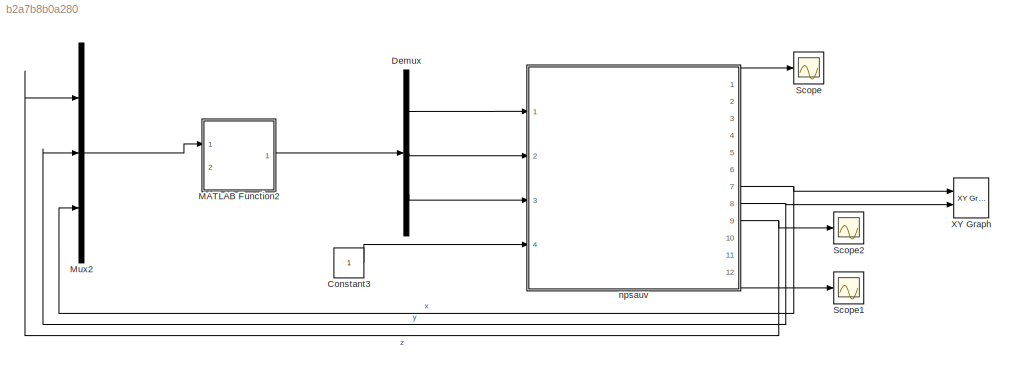
MODEL slx_b2a7b8b0a280
KIND model
CONFIG AbsTol = auto
CONFIG EnableMultiTasking = off
CONFIG FixedStep = 1
CONFIG MaxStep = auto
CONFIG MinStep = auto
CONFIG RelTol = 1e-3
CONFIG SampleTimeConstraint = Unconstrained
CONFIG Solver = FixedStepAuto
CONFIG SolverName = FixedStepAuto
CONFIG StartTime = 0.0
CONFIG StopTime = 1000
BLOCK [Constant] Constant3
BLOCK [Demux] Demux
  DisplayOption = bar
  Outputs = 3
  Ports = [1, 3]
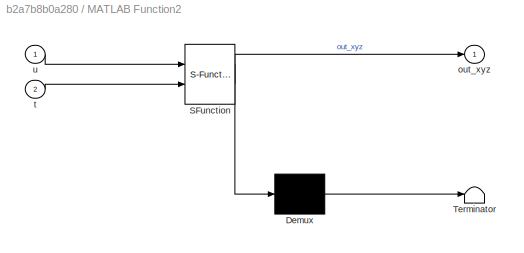
BLOCK [SubSystem] MATLAB Function2
  ErrorFcn = Stateflow.Translate.translate
  PermitHierarchicalResolution = ExplicitOnly
  Ports = [2, 1]
  RequestExecContextInheritance = off
  SFBlockType = MATLAB Function
  TreatAsAtomicUnit = on
  Variant = off
BLOCK [Demux] MATLAB Function2/ Demux 
  Outputs = 1
  Ports = [1, 1]
BLOCK [S-Function] MATLAB Function2/ SFunction 
  EnableBusSupport = on
  FunctionName = sf_sfun
  PortCounts = [2 2]
  Ports = [2, 2]
  SFcnIsStateOwnerBlock = off
  SFunctionDeploymentMode = off
  Tag = Stateflow S-Function npsauv_with_psi_converter 3
BLOCK [Terminator] MATLAB Function2/ Terminator 
BLOCK [Outport] MATLAB Function2/out_xyz
  IconDisplay = Port number
BLOCK [Inport] MATLAB Function2/t
  IconDisplay = Port number
  Port = 2
BLOCK [Inport] MATLAB Function2/u
  IconDisplay = Port number
BLOCK [Mux] Mux2
  DisplayOption = bar
  Inputs = 3
  Ports = [3, 1]
BLOCK [Scope] Scope
  NumInputPorts = 1
  Ports = [1]
  ScopeSpecificationString = Simulink.scopes.TimeScopeBlockCfg('CurrentConfiguration', extmgr.ConfigurationSet(extmgr.Configuration('Core','General UI',true),extmgr.Configuration('Core','Source UI',true),extmgr.Configuration('Sources','WiredSimulink',true,'DataLoggingVariableName','ScopeData2'),extmgr.Configuration('Visuals','Time Domain',true,'SerializedDisplays',{struct('MinYLimReal','-0.13586','MaxYLimReal','1.22272','YLab...<+1417ch>
BLOCK [Scope] Scope1
  NumInputPorts = 1
  Ports = [1]
  ScopeSpecificationString = Simulink.scopes.TimeScopeBlockCfg('CurrentConfiguration', extmgr.ConfigurationSet(extmgr.Configuration('Core','General UI',true),extmgr.Configuration('Core','Source UI',true),extmgr.Configuration('Sources','WiredSimulink',true,'DataLoggingVariableName','ScopeData3'),extmgr.Configuration('Visuals','Time Domain',true,'SerializedDisplays',{struct('MinYLimReal','-1.00000','MaxYLimReal','1.00000','YLab...<+1419ch>
BLOCK [Scope] Scope2
  NumInputPorts = 1
  Ports = [1]
  ScopeSpecificationString = Simulink.scopes.TimeScopeBlockCfg('CurrentConfiguration', extmgr.ConfigurationSet(extmgr.Configuration('Core','General UI',true),extmgr.Configuration('Core','Source UI',true),extmgr.Configuration('Sources','WiredSimulink',true),extmgr.Configuration('Visuals','Time Domain',true,'SerializedDisplays',{struct('MinYLimReal','-1.00000','MaxYLimReal','1.00000','YLabelReal','','MinYLimMag','0.00000','MaxY...<+1371ch>
BLOCK [Reference] XY Graph  REF=simulink/Sinks/XY Graph
  Ports = [2]
  SourceBlock = simulink/Sinks/XY Graph
  SourceProductBaseCode = SL
  SourceProductName = Simulink
  SourceType = XY scope.
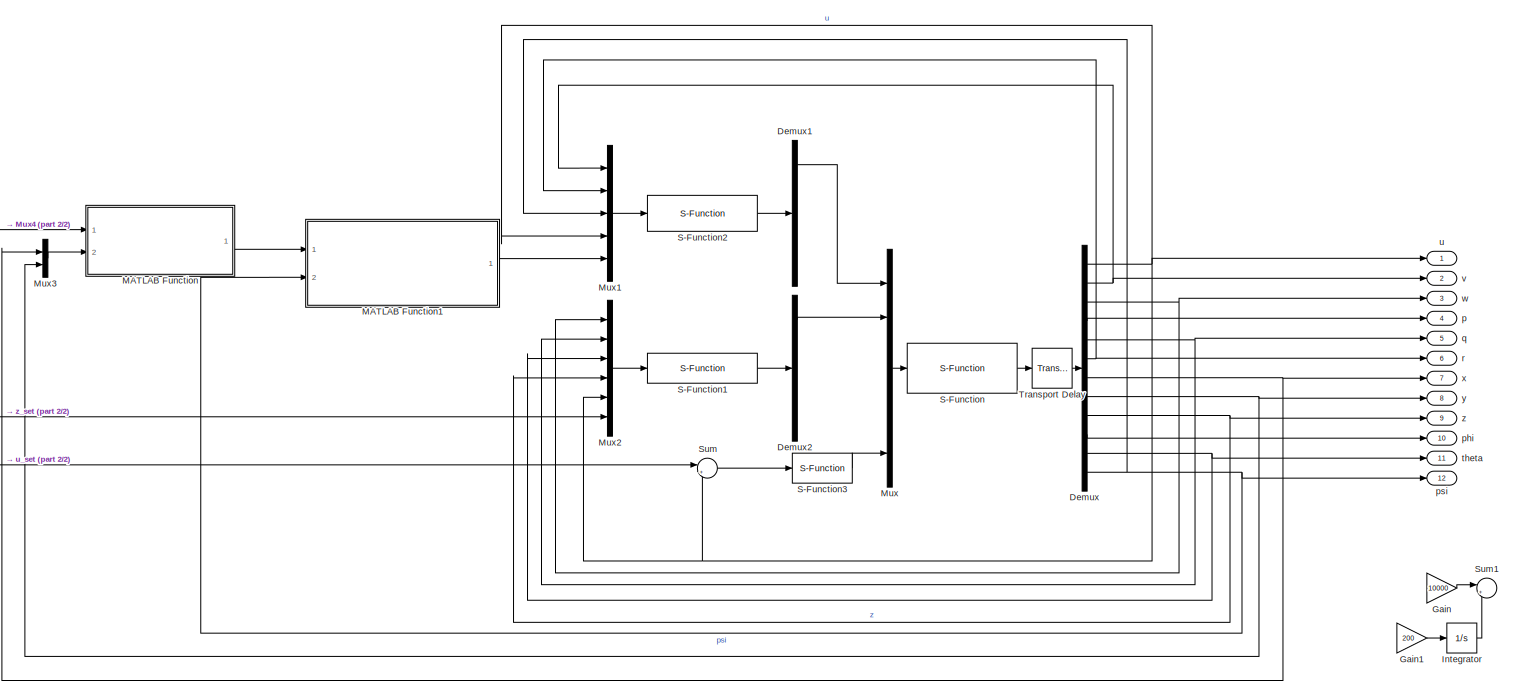
[diagram: npsauv - part 1/2, most of the canvas]
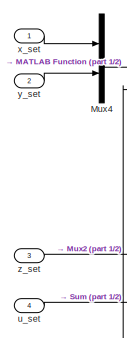
[diagram: npsauv - part 2/2, middle left region]
BLOCK [SubSystem] npsauv
  Ports = [4, 12]
  RequestExecContextInheritance = off
  Variant = off
BLOCK [Demux] npsauv/Demux
  DisplayOption = bar
  Outputs = 12
  Ports = [1, 12]
BLOCK [Demux] npsauv/Demux1
  DisplayOption = bar
  Outputs = 5
  Ports = [1, 5]
BLOCK [Demux] npsauv/Demux2
  DisplayOption = bar
  Outputs = 5
  Ports = [1, 5]
BLOCK [Gain] npsauv/Gain
  Gain = 10000
  OutDataTypeStr = Inherit: Inherit via internal rule
  ParamDataTypeStr = Inherit: Inherit via internal rule
  SaturateOnIntegerOverflow = off
BLOCK [Gain] npsauv/Gain1
  Gain = 200
  OutDataTypeStr = Inherit: Inherit via internal rule
  ParamDataTypeStr = Inherit: Inherit via internal rule
  SaturateOnIntegerOverflow = off
BLOCK [Integrator] npsauv/Integrator
  LimitOutput = on
  LowerSaturationLimit = -50
  Ports = [1, 1]
  UpperSaturationLimit = 50
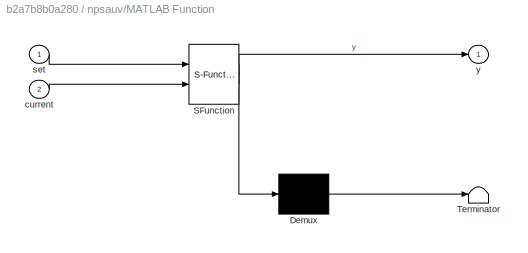
BLOCK [SubSystem] npsauv/MATLAB Function
  ErrorFcn = Stateflow.Translate.translate
  PermitHierarchicalResolution = ExplicitOnly
  Ports = [2, 1]
  RequestExecContextInheritance = off
  SFBlockType = MATLAB Function
  TreatAsAtomicUnit = on
  Variant = off
BLOCK [Demux] npsauv/MATLAB Function/ Demux 
  Outputs = 1
  Ports = [1, 1]
BLOCK [S-Function] npsauv/MATLAB Function/ SFunction 
  EnableBusSupport = on
  FunctionName = sf_sfun
  PortCounts = [2 2]
  Ports = [2, 2]
  SFcnIsStateOwnerBlock = off
  SFunctionDeploymentMode = off
  Tag = Stateflow S-Function npsauv_with_psi_converter 2
BLOCK [Terminator] npsauv/MATLAB Function/ Terminator 
BLOCK [Inport] npsauv/MATLAB Function/current
  IconDisplay = Port number
  Port = 2
BLOCK [Inport] npsauv/MATLAB Function/set
  IconDisplay = Port number
BLOCK [Outport] npsauv/MATLAB Function/y
  IconDisplay = Port number
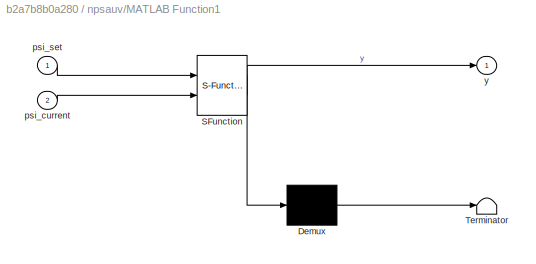
BLOCK [SubSystem] npsauv/MATLAB Function1
  ErrorFcn = Stateflow.Translate.translate
  PermitHierarchicalResolution = ExplicitOnly
  Ports = [2, 1]
  RequestExecContextInheritance = off
  SFBlockType = MATLAB Function
  TreatAsAtomicUnit = on
  Variant = off
BLOCK [Demux] npsauv/MATLAB Function1/ Demux 
  Outputs = 1
  Ports = [1, 1]
BLOCK [S-Function] npsauv/MATLAB Function1/ SFunction 
  EnableBusSupport = on
  FunctionName = sf_sfun
  PortCounts = [2 2]
  Ports = [2, 2]
  SFcnIsStateOwnerBlock = off
  SFunctionDeploymentMode = off
  Tag = Stateflow S-Function npsauv_with_psi_converter 1
BLOCK [Terminator] npsauv/MATLAB Function1/ Terminator 
BLOCK [Inport] npsauv/MATLAB Function1/psi_current
  IconDisplay = Port number
  Port = 2
BLOCK [Inport] npsauv/MATLAB Function1/psi_set
  IconDisplay = Port number
BLOCK [Outport] npsauv/MATLAB Function1/y
  IconDisplay = Port number
BLOCK [Mux] npsauv/Mux
  DisplayOption = bar
  Inputs = 6
  Ports = [6, 1]
BLOCK [Mux] npsauv/Mux1
  DisplayOption = bar
  Inputs = 5
  Ports = [5, 1]
BLOCK [Mux] npsauv/Mux2
  DisplayOption = bar
  Inputs = 6
  Ports = [6, 1]
BLOCK [Mux] npsauv/Mux3
  DisplayOption = bar
  Inputs = 2
  Ports = [2, 1]
BLOCK [Mux] npsauv/Mux4
  DisplayOption = bar
  Inputs = 2
  Ports = [2, 1]
BLOCK [S-Function] npsauv/S-Function
  EnableBusSupport = off
  FunctionName = s_npsauv_model
  Parameters = x_init
  Ports = [1, 1]
  SFcnIsStateOwnerBlock = off
  SFunctionDeploymentMode = off
BLOCK [S-Function] npsauv/S-Function1
  EnableBusSupport = off
  FunctionName = s_mpc_controller_depth
  Ports = [1, 1]
  SFcnIsStateOwnerBlock = off
  SFunctionDeploymentMode = off
BLOCK [S-Function] npsauv/S-Function2
  EnableBusSupport = off
  FunctionName = s_mpc_controller_psi
  Ports = [1, 1]
  SFcnIsStateOwnerBlock = off
  SFunctionDeploymentMode = off
BLOCK [S-Function] npsauv/S-Function3
  EnableBusSupport = off
  FunctionName = s_pid_controller_u
  Ports = [1, 1]
  SFcnIsStateOwnerBlock = off
  SFunctionDeploymentMode = off
BLOCK [Sum] npsauv/Sum
  IconShape = round
  InputSameDT = off
  Inputs = |+-
  OutDataTypeStr = Inherit: Inherit via internal rule
  Ports = [2, 1]
  SaturateOnIntegerOverflow = off
BLOCK [Sum] npsauv/Sum1
  IconShape = round
  InputSameDT = off
  Inputs = |++
  OutDataTypeStr = Inherit: Inherit via internal rule
  Ports = [2, 1]
  SaturateOnIntegerOverflow = off
BLOCK [TransportDelay] npsauv/Transport Delay
  DelayTime = 0.01
  Ports = [1, 1]
BLOCK [Outport] npsauv/p
  IconDisplay = Port number
  Port = 4
BLOCK [Outport] npsauv/phi
  IconDisplay = Port number
  Port = 10
BLOCK [Outport] npsauv/psi
  IconDisplay = Port number
  Port = 12
BLOCK [Outport] npsauv/q
  IconDisplay = Port number
  Port = 5
BLOCK [Outport] npsauv/r
  IconDisplay = Port number
  Port = 6
BLOCK [Outport] npsauv/theta
  IconDisplay = Port number
  Port = 11
BLOCK [Outport] npsauv/u
  IconDisplay = Port number
BLOCK [Inport] npsauv/u_set
  IconDisplay = Port number
  Port = 4
BLOCK [Outport] npsauv/v
  IconDisplay = Port number
  Port = 2
BLOCK [Outport] npsauv/w
  IconDisplay = Port number
  Port = 3
BLOCK [Outport] npsauv/x
  IconDisplay = Port number
  Port = 7
BLOCK [Inport] npsauv/x_set
  IconDisplay = Port number
BLOCK [Outport] npsauv/y
  IconDisplay = Port number
  Port = 8
BLOCK [Inport] npsauv/y_set
  IconDisplay = Port number
  Port = 2
BLOCK [Outport] npsauv/z
  IconDisplay = Port number
  Port = 9
BLOCK [Inport] npsauv/z_set
  IconDisplay = Port number
  Port = 3
LINE Constant3:1 -> npsauv:4
LINE Demux:1 -> npsauv:1
LINE Demux:2 -> npsauv:2
LINE Demux:3 -> npsauv:3
LINE MATLAB Function2:1 -> Demux:1
LINE Mux2:1 -> MATLAB Function2:1
LINE npsauv/Demux1:1 -> npsauv/Mux:1
LINE npsauv/Demux2:1 -> npsauv/Mux:2
NET npsauv/Demux:1 -> npsauv/Mux1:4, npsauv/Mux2:5, npsauv/Sum:2, npsauv/u:1
LINE npsauv/Demux:10 -> npsauv/phi:1
NET npsauv/Demux:11 -> npsauv/Mux2:3, npsauv/theta:1
NET npsauv/Demux:12 -> npsauv/MATLAB Function1:2, npsauv/Mux1:3, npsauv/psi:1
NET npsauv/Demux:2 -> npsauv/Mux1:1, npsauv/v:1
NET npsauv/Demux:3 -> npsauv/Mux2:1, npsauv/w:1
LINE npsauv/Demux:4 -> npsauv/p:1
NET npsauv/Demux:5 -> npsauv/Mux2:2, npsauv/q:1
NET npsauv/Demux:6 -> npsauv/Mux1:2, npsauv/r:1
NET npsauv/Demux:7 -> npsauv/Mux3:1, npsauv/x:1
NET npsauv/Demux:8 -> npsauv/Mux3:2, npsauv/y:1
NET npsauv/Demux:9 -> npsauv/Mux2:4, npsauv/z:1
LINE npsauv/Gain1:1 -> npsauv/Integrator:1
LINE npsauv/Gain:1 -> npsauv/Sum1:1
LINE npsauv/Integrator:1 -> npsauv/Sum1:2
LINE npsauv/MATLAB Function1:1 -> npsauv/Mux1:5
LINE npsauv/MATLAB Function:1 -> npsauv/MATLAB Function1:1
LINE npsauv/Mux1:1 -> npsauv/S-Function2:1
LINE npsauv/Mux2:1 -> npsauv/S-Function1:1
LINE npsauv/Mux3:1 -> npsauv/MATLAB Function:2
LINE npsauv/Mux4:1 -> npsauv/MATLAB Function:1
LINE npsauv/Mux:1 -> npsauv/S-Function:1
LINE npsauv/S-Function1:1 -> npsauv/Demux2:1
LINE npsauv/S-Function2:1 -> npsauv/Demux1:1
LINE npsauv/S-Function3:1 -> npsauv/Mux:6
LINE npsauv/S-Function:1 -> npsauv/Transport Delay:1
LINE npsauv/Sum:1 -> npsauv/S-Function3:1
LINE npsauv/Transport Delay:1 -> npsauv/Demux:1
LINE npsauv/u_set:1 -> npsauv/Sum:1
LINE npsauv/x_set:1 -> npsauv/Mux4:1
LINE npsauv/y_set:1 -> npsauv/Mux4:2
LINE npsauv/z_set:1 -> npsauv/Mux2:6
LINE npsauv:1 -> Scope:1
LINE npsauv:12 -> Scope1:1
NET npsauv:7 -> Mux2:3, XY Graph:1
NET npsauv:8 -> Mux2:2, XY Graph:2
NET npsauv:9 -> Mux2:1, Scope2:1
note: NET lines group one-source signal fan-out (src -> all destinations, sorted); 1:1 wires keep LINE
CHART npsauv/MATLAB Function1 states=1 transitions=1
  STATE_LABEL 'eML_blk_kernel()'
  STATE_LABEL 'SCRIPT:\nfunction y = psi_set_converter(psi_set,psi_current)\n%find nearest psi\nwhile psi_set-psi_current>2*pi\n    psi_set=psi_set-2*pi;\nend\nwhile psi_set-psi_current<=2*pi\n    psi_set=psi_set+2*pi;\nend\nif psi_set-psi_current>pi\n    psi_set=psi_set-2*pi;\nend\nif psi_set-psi_current<-pi\n    psi_set=psi_set+2*pi;\nend\ny=psi_set;\n\n'
CHART npsauv/MATLAB Function states=1 transitions=1
  STATE_LABEL 'eML_blk_kernel()'
  STATE_LABEL 'SCRIPT:\nfunction y = coordinate_to_psi(set,current)\nvec=set-current;\ny=atan2(vec(2),vec(1));\n\n'
CHART MATLAB Function2 states=1 transitions=1
  STATE_LABEL 'eML_blk_kernel()'
  STATE_LABEL "SCRIPT:\nfunction out_xyz = f(u,t)\nS = load('pathdata.mat','a');\nout_xyz = [1,S.a(1,1),S.a(1,2)*200];\ni =2;\n\nwhile i<22 && tmod\n    if  out_xyz(1)-u(1)<0.1 && out_xyz(2)-u(2)<0.1 && out_xyz(3)-u(3)<10\n        out_xyz = [1,S.a(i,1),S.a(i,2)*200];\n        i =i+1;\n    end      \nend\n"
